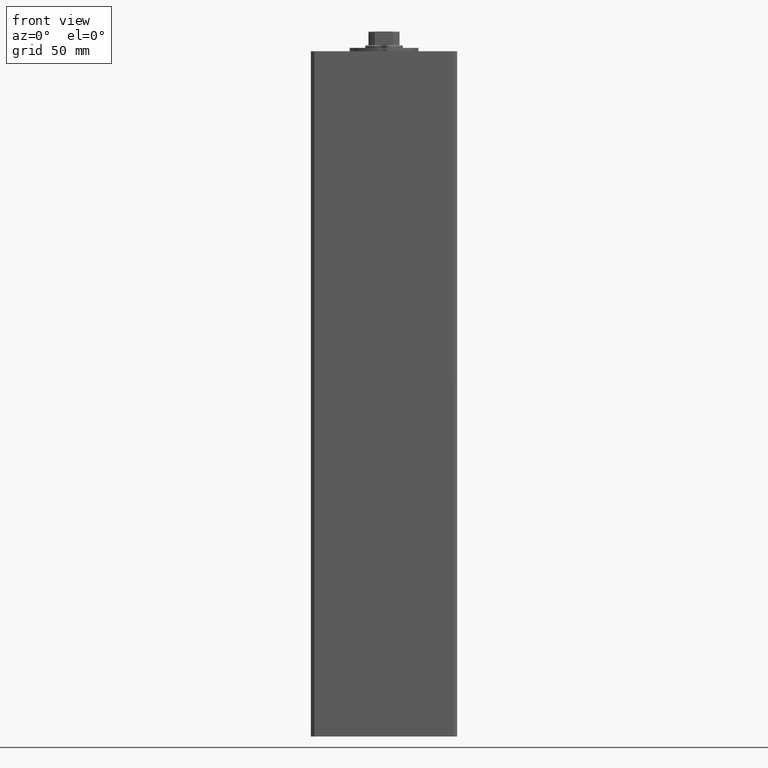
[diagram: clean part render]
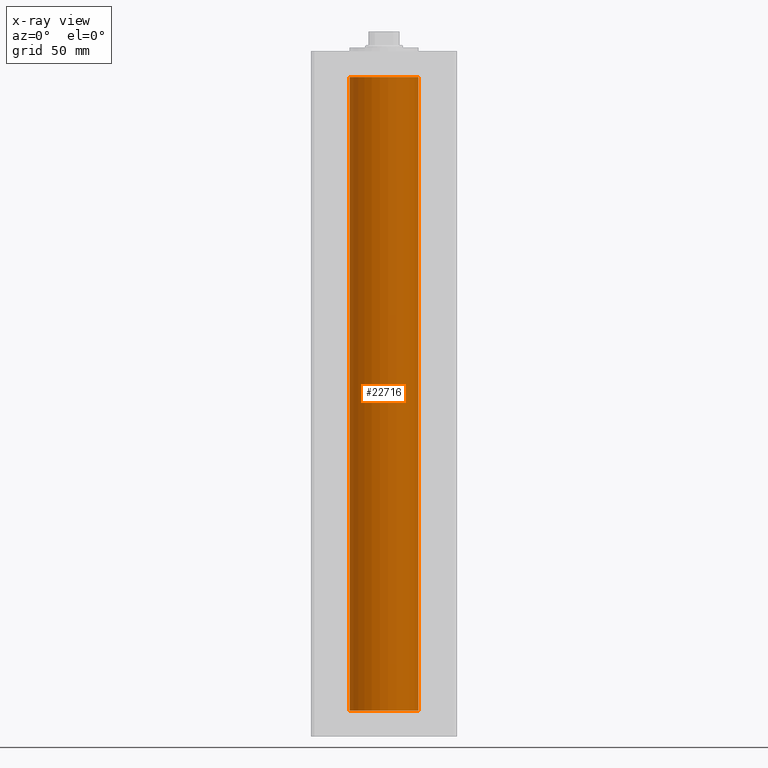
[diagram: x-ray — body ghosted, one internal face saturated and labeled with its STEP entity id]
A machine part, front view, then the same camera in x-ray: the body is ghosted and one INTERNAL B-rep face — a face not visible from any outside direction — is saturated and labeled: STEP entity #22716.
In plain terms, the highlighted cylindrical surface (edge-blend (fillet) strip) has radius 20 mm, axis along (-0, -0, -1).
Its self-contained STEP definition (entity closure, byte-faithful):
#758 = VECTOR ( 'NONE', #25278, 1000.000000000000000 ) ;
#1801 = LINE ( 'NONE', #41629, #758 ) ;
#1954 = ORIENTED_EDGE ( 'NONE', *, *, #50485, .T. ) ;
#3053 = FACE_OUTER_BOUND ( 'NONE', #32554, .T. ) ;
#3115 = AXIS2_PLACEMENT_3D ( 'NONE', #6457, #19104, #14881 ) ;
#3723 = CARTESIAN_POINT ( 'NONE',  ( 0.000000000000000000, 0.000000000000000000, 368.5000000000000000 ) ) ;
#5994 = LINE ( 'NONE', #13122, #13635 ) ;
#6457 = CARTESIAN_POINT ( 'NONE',  ( 0.000000000000000000, 0.000000000000000000, 0.000000000000000000 ) ) ;
#9814 = VERTEX_POINT ( 'NONE', #47818 ) ;
#11214 = DIRECTION ( 'NONE',  ( -1.000000000000000000, 0.000000000000000000, 0.000000000000000000 ) ) ;
#12404 = ORIENTED_EDGE ( 'NONE', *, *, #22639, .F. ) ;
#13122 = CARTESIAN_POINT ( 'NONE',  ( -20.00000000000000000, 0.000000000000000000, 368.5000000000000000 ) ) ;
#13388 = DIRECTION ( 'NONE',  ( -0.000000000000000000, -0.000000000000000000, -1.000000000000000000 ) ) ;
#13635 = VECTOR ( 'NONE', #13388, 1000.000000000000000 ) ;
#14881 = DIRECTION ( 'NONE',  ( 1.000000000000000000, 0.000000000000000000, 0.000000000000000000 ) ) ;
#18037 = EDGE_CURVE ( 'NONE', #33035, #46743, #45524, .T. ) ;
#19104 = DIRECTION ( 'NONE',  ( -0.000000000000000000, 0.000000000000000000, 1.000000000000000000 ) ) ;
#19119 = CIRCLE ( 'NONE', #3115, 20.00000000000000000 ) ;
#19811 = DIRECTION ( 'NONE',  ( -0.000000000000000000, 0.000000000000000000, 1.000000000000000000 ) ) ;
#22639 = EDGE_CURVE ( 'NONE', #33035, #9814, #5994, .T. ) ;
#22716 = ADVANCED_FACE ( 'NONE', ( #3053 ), #22840, .F. ) ;
#22840 = CYLINDRICAL_SURFACE ( 'NONE', #40582, 20.00000000000000000 ) ;
#22969 = ORIENTED_EDGE ( 'NONE', *, *, #18037, .T. ) ;
#23436 = CARTESIAN_POINT ( 'NONE',  ( 20.00000000000000000, 2.449293598294706513E-15, 368.5000000000000000 ) ) ;
#25278 = DIRECTION ( 'NONE',  ( -0.000000000000000000, -0.000000000000000000, -1.000000000000000000 ) ) ;
#26524 = CARTESIAN_POINT ( 'NONE',  ( 0.000000000000000000, 0.000000000000000000, 368.5000000000000000 ) ) ;
#29567 = VERTEX_POINT ( 'NONE', #41668 ) ;
#30748 = ORIENTED_EDGE ( 'NONE', *, *, #41241, .F. ) ;
#32554 = EDGE_LOOP ( 'NONE', ( #22969, #1954, #30748, #12404 ) ) ;
#33035 = VERTEX_POINT ( 'NONE', #38646 ) ;
#35905 = DIRECTION ( 'NONE',  ( 1.000000000000000000, 0.000000000000000000, 0.000000000000000000 ) ) ;
#38646 = CARTESIAN_POINT ( 'NONE',  ( -20.00000000000000000, 0.000000000000000000, 368.5000000000000000 ) ) ;
#40582 = AXIS2_PLACEMENT_3D ( 'NONE', #26524, #50805, #11214 ) ;
#41241 = EDGE_CURVE ( 'NONE', #9814, #29567, #19119, .T. ) ;
#41629 = CARTESIAN_POINT ( 'NONE',  ( 20.00000000000000000, 2.449293598294706513E-15, 368.5000000000000000 ) ) ;
#41668 = CARTESIAN_POINT ( 'NONE',  ( 20.00000000000000000, 2.449293598294706513E-15, 0.000000000000000000 ) ) ;
#42130 = AXIS2_PLACEMENT_3D ( 'NONE', #3723, #19811, #35905 ) ;
#45524 = CIRCLE ( 'NONE', #42130, 20.00000000000000000 ) ;
#46743 = VERTEX_POINT ( 'NONE', #23436 ) ;
#47818 = CARTESIAN_POINT ( 'NONE',  ( -20.00000000000000000, 0.000000000000000000, 0.000000000000000000 ) ) ;
#50485 = EDGE_CURVE ( 'NONE', #46743, #29567, #1801, .T. ) ;
#50805 = DIRECTION ( 'NONE',  ( -0.000000000000000000, -0.000000000000000000, -1.000000000000000000 ) ) ;